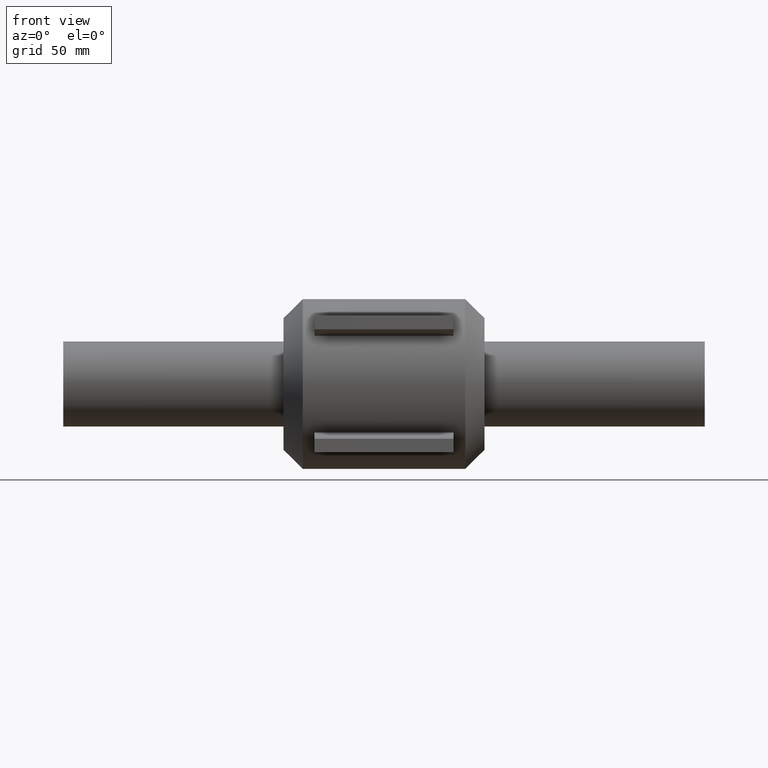
[diagram: clean part render]
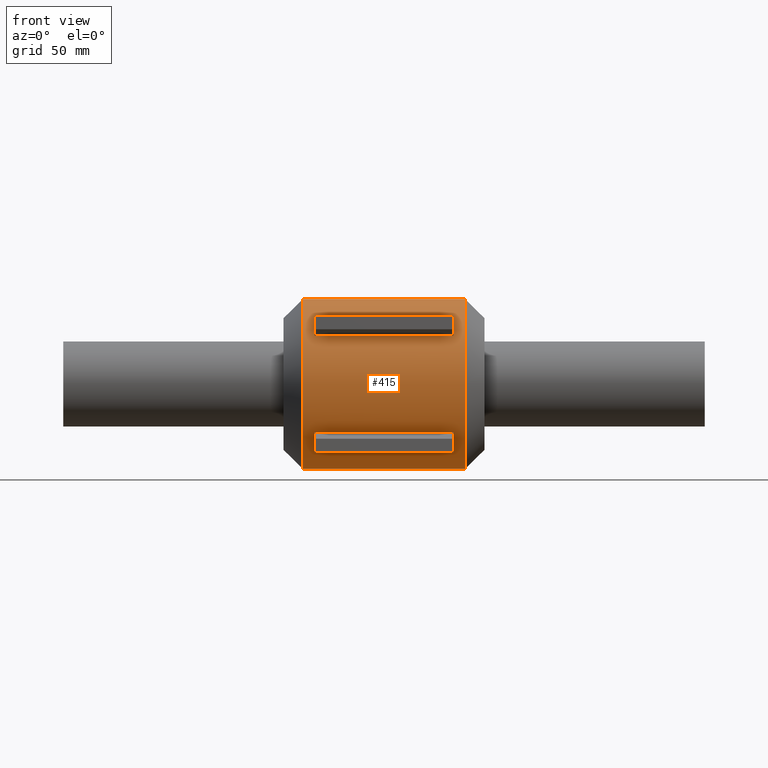
[diagram: same view with one face highlighted and labeled with its STEP entity id]
A machine part, front view. The second image highlights one B-rep face of the part: STEP entity #415.
In plain terms, the highlighted cylindrical surface (bore or boss wall) has radius 40 mm, axis along (1, 0, 0).
Its self-contained STEP definition (entity closure, byte-faithful):
#38=LINE('',#884,#58);
#39=LINE('',#887,#59);
#40=LINE('',#892,#60);
#41=LINE('',#895,#61);
#58=VECTOR('',#522,65.);
#59=VECTOR('',#525,65.);
#60=VECTOR('',#528,65.);
#61=VECTOR('',#531,65.);
#79=FACE_BOUND('',#148,.T.);
#80=FACE_BOUND('',#149,.T.);
#81=FACE_BOUND('',#150,.T.);
#82=FACE_BOUND('',#151,.T.);
#104=CYLINDRICAL_SURFACE('',#451,40.);
#114=FACE_OUTER_BOUND('',#147,.T.);
#147=EDGE_LOOP('',(#322));
#148=EDGE_LOOP('',(#323));
#149=EDGE_LOOP('',(#324,#325,#326,#327));
#150=EDGE_LOOP('',(#328,#329,#330,#331));
#151=EDGE_LOOP('',(#332));
#202=B_SPLINE_CURVE_WITH_KNOTS('',3,(#840,#841,#842,#843,#844,#845,#846,
#847,#848,#849,#850,#851,#852,#853,#854,#855,#856,#857,#858,#859,#860,#861,
#862,#863,#864,#865,#866,#867,#868,#869,#870,#871),.UNSPECIFIED.,.T.,.F.,
(4,1,1,1,1,1,1,1,1,1,1,1,1,1,1,1,1,1,1,1,1,1,1,1,1,1,1,1,1,4),(-34.8512245240254,
-34.4363289939775,-34.0214334639296,-33.1916424038337,-32.3618513437379,
-31.532060283642,-30.4256722035142,-29.3192841233864,-28.2128960432587,
-27.1065079631309,-26.0001198830031,-24.8937318028753,-24.3405377628114,
-23.7873437227475,-23.2341496826836,-22.6809556426197,-22.1277616025558,
-21.5745675624919,-20.4681794823641,-19.3617914022363,-18.2554033221085,
-17.4256122620127,-16.5958212019169,-15.766030141821,-14.9362390817252,
-14.1064480216293,-13.2766569615335,-12.4468659014376,-12.0319703713897,
-11.6170748413418),.UNSPECIFIED.);
#205=CIRCLE('',#452,40.);
#206=CIRCLE('',#453,40.);
#207=CIRCLE('',#454,40.);
#208=CIRCLE('',#455,40.);
#209=CIRCLE('',#456,40.);
#210=CIRCLE('',#457,40.);
#229=VERTEX_POINT('',#805);
#232=VERTEX_POINT('',#876);
#233=VERTEX_POINT('',#878);
#234=VERTEX_POINT('',#880);
#235=VERTEX_POINT('',#881);
#236=VERTEX_POINT('',#883);
#237=VERTEX_POINT('',#885);
#238=VERTEX_POINT('',#888);
#239=VERTEX_POINT('',#889);
#240=VERTEX_POINT('',#891);
#241=VERTEX_POINT('',#893);
#270=EDGE_CURVE('',#229,#229,#202,.T.);
#272=EDGE_CURVE('',#232,#232,#205,.T.);
#273=EDGE_CURVE('',#233,#233,#206,.T.);
#274=EDGE_CURVE('',#234,#235,#207,.T.);
#275=EDGE_CURVE('',#235,#236,#38,.T.);
#276=EDGE_CURVE('',#236,#237,#208,.T.);
#277=EDGE_CURVE('',#237,#234,#39,.T.);
#278=EDGE_CURVE('',#238,#239,#209,.T.);
#279=EDGE_CURVE('',#239,#240,#40,.T.);
#280=EDGE_CURVE('',#240,#241,#210,.T.);
#281=EDGE_CURVE('',#241,#238,#41,.T.);
#322=ORIENTED_EDGE('',*,*,#272,.T.);
#323=ORIENTED_EDGE('',*,*,#273,.F.);
#324=ORIENTED_EDGE('',*,*,#274,.T.);
#325=ORIENTED_EDGE('',*,*,#275,.T.);
#326=ORIENTED_EDGE('',*,*,#276,.T.);
#327=ORIENTED_EDGE('',*,*,#277,.T.);
#328=ORIENTED_EDGE('',*,*,#278,.T.);
#329=ORIENTED_EDGE('',*,*,#279,.T.);
#330=ORIENTED_EDGE('',*,*,#280,.T.);
#331=ORIENTED_EDGE('',*,*,#281,.T.);
#332=ORIENTED_EDGE('',*,*,#270,.F.);
#415=ADVANCED_FACE('',(#114,#79,#80,#81,#82),#104,.T.);
#451=AXIS2_PLACEMENT_3D('',#875,#514,#515);
#452=AXIS2_PLACEMENT_3D('',#877,#516,#517);
#453=AXIS2_PLACEMENT_3D('',#879,#518,#519);
#454=AXIS2_PLACEMENT_3D('',#882,#520,#521);
#455=AXIS2_PLACEMENT_3D('',#886,#523,#524);
#456=AXIS2_PLACEMENT_3D('',#890,#526,#527);
#457=AXIS2_PLACEMENT_3D('',#894,#529,#530);
#514=DIRECTION('center_axis',(1.,0.,0.));
#515=DIRECTION('ref_axis',(0.,1.,0.));
#516=DIRECTION('center_axis',(1.,0.,0.));
#517=DIRECTION('ref_axis',(0.,0.,-1.));
#518=DIRECTION('center_axis',(1.,0.,0.));
#519=DIRECTION('ref_axis',(0.,0.,-1.));
#520=DIRECTION('center_axis',(-1.,0.,0.));
#521=DIRECTION('ref_axis',(0.,1.,0.));
#522=DIRECTION('',(1.,0.,0.));
#523=DIRECTION('center_axis',(1.,0.,0.));
#524=DIRECTION('ref_axis',(0.,1.,0.));
#525=DIRECTION('',(-1.,0.,0.));
#526=DIRECTION('center_axis',(-1.,0.,0.));
#527=DIRECTION('ref_axis',(0.,1.,0.));
#528=DIRECTION('',(1.,0.,0.));
#529=DIRECTION('center_axis',(1.,0.,0.));
#530=DIRECTION('ref_axis',(0.,1.,0.));
#531=DIRECTION('',(-1.,0.,0.));
#805=CARTESIAN_POINT('',(-1.22268782419593E-15,19.0561187664889,-35.1690821256039));
#840=CARTESIAN_POINT('Ctrl Pts',(6.61062485431286E-6,19.0558804887254,-35.1691475469489));
#841=CARTESIAN_POINT('Ctrl Pts',(-1.47440477310263,19.0558869165608,-35.1691371946144));
#842=CARTESIAN_POINT('Ctrl Pts',(-4.42331418981575,19.3841770898922,-34.9934758669178));
#843=CARTESIAN_POINT('Ctrl Pts',(-9.97939287689957,21.1247051247504,-34.0042231430002));
#844=CARTESIAN_POINT('Ctrl Pts',(-16.151307688451,24.4626187978444,-31.8035919865153));
#845=CARTESIAN_POINT('Ctrl Pts',(-22.5896708552798,28.8930176906673,-27.9013772543897));
#846=CARTESIAN_POINT('Ctrl Pts',(-28.7558063062651,33.6385872904903,-22.1561193783592));
#847=CARTESIAN_POINT('Ctrl Pts',(-34.0335523918959,37.98773899705,-13.9753802194891));
#848=CARTESIAN_POINT('Ctrl Pts',(-36.9360896977518,40.4568359378722,-2.94666329507843));
#849=CARTESIAN_POINT('Ctrl Pts',(-35.9261585252848,39.5947047763234,8.66671962983322));
#850=CARTESIAN_POINT('Ctrl Pts',(-31.4375710924976,35.81644680318,18.7282979090657));
#851=CARTESIAN_POINT('Ctrl Pts',(-24.6595156293583,30.4084789072049,26.4816850244096));
#852=CARTESIAN_POINT('Ctrl Pts',(-17.6692007406528,25.4038479544172,31.0544693022397));
#853=CARTESIAN_POINT('Ctrl Pts',(-11.2352525665441,21.7956286789355,33.5834543675383));
#854=CARTESIAN_POINT('Ctrl Pts',(-5.89194112831394,19.6571724304898,34.8517446135189));
#855=CARTESIAN_POINT('Ctrl Pts',(-0.00165519294322256,18.7525247066787,
35.3285379106923));
#856=CARTESIAN_POINT('Ctrl Pts',(5.88894927693354,19.6573629962117,34.852046383905));
#857=CARTESIAN_POINT('Ctrl Pts',(11.2326031249699,21.7939884246858,33.5840276422223));
#858=CARTESIAN_POINT('Ctrl Pts',(17.6679425547828,25.402856095957,31.05642428974));
#859=CARTESIAN_POINT('Ctrl Pts',(24.6559282019731,30.4037122867494,26.4826804976762));
#860=CARTESIAN_POINT('Ctrl Pts',(31.4386605405043,35.8184538632143,18.7336590041752));
#861=CARTESIAN_POINT('Ctrl Pts',(35.5455395557525,39.2737437689084,9.50451930796056));
#862=CARTESIAN_POINT('Ctrl Pts',(36.766941782252,40.3120334739505,-0.00125225680213209));
#863=CARTESIAN_POINT('Ctrl Pts',(35.6692605855648,39.3778658793211,-8.54534073797569));
#864=CARTESIAN_POINT('Ctrl Pts',(32.6294732161702,36.8217679882532,-16.2559878557383));
#865=CARTESIAN_POINT('Ctrl Pts',(28.1444961326862,33.1680415888423,-22.7275884513697));
#866=CARTESIAN_POINT('Ctrl Pts',(22.5895754752709,28.8928982087506,-27.9004949390086));
#867=CARTESIAN_POINT('Ctrl Pts',(16.1522073914565,24.4632953981345,-31.8035612957815));
#868=CARTESIAN_POINT('Ctrl Pts',(9.98025401684283,21.1249720028036,-34.0039084021584));
#869=CARTESIAN_POINT('Ctrl Pts',(4.42315411254913,19.3841385228801,-34.9935379809245));
#870=CARTESIAN_POINT('Ctrl Pts',(1.47441799435233,19.0558740608901,-35.1691578992833));
#871=CARTESIAN_POINT('Ctrl Pts',(6.61062485431286E-6,19.0558804887254,-35.1691475469489));
#875=CARTESIAN_POINT('Origin',(0.,0.,0.));
#876=CARTESIAN_POINT('',(-38.,40.,0.));
#877=CARTESIAN_POINT('Origin',(-38.,0.,0.));
#878=CARTESIAN_POINT('',(38.,40.,0.));
#879=CARTESIAN_POINT('Origin',(38.,0.,0.));
#880=CARTESIAN_POINT('',(-32.5,-33.0017526210098,22.6027503623271));
#881=CARTESIAN_POINT('',(-32.5,-24.,32.));
#882=CARTESIAN_POINT('Origin',(-32.5,0.,0.));
#883=CARTESIAN_POINT('',(32.5,-24.,32.));
#884=CARTESIAN_POINT('',(0.,-24.,32.));
#885=CARTESIAN_POINT('',(32.5,-33.0017526210098,22.6027503623271));
#886=CARTESIAN_POINT('Origin',(32.5,0.,0.));
#887=CARTESIAN_POINT('',(0.,-33.0017526210097,22.6027503623271));
#888=CARTESIAN_POINT('',(-32.5,-24.,-32.));
#889=CARTESIAN_POINT('',(-32.5,-33.0017526210098,-22.6027503623271));
#890=CARTESIAN_POINT('Origin',(-32.5,0.,0.));
#891=CARTESIAN_POINT('',(32.5,-33.0017526210098,-22.6027503623271));
#892=CARTESIAN_POINT('',(0.,-33.0017526210097,-22.6027503623271));
#893=CARTESIAN_POINT('',(32.5,-24.,-32.));
#894=CARTESIAN_POINT('Origin',(32.5,0.,0.));
#895=CARTESIAN_POINT('',(0.,-24.,-32.));